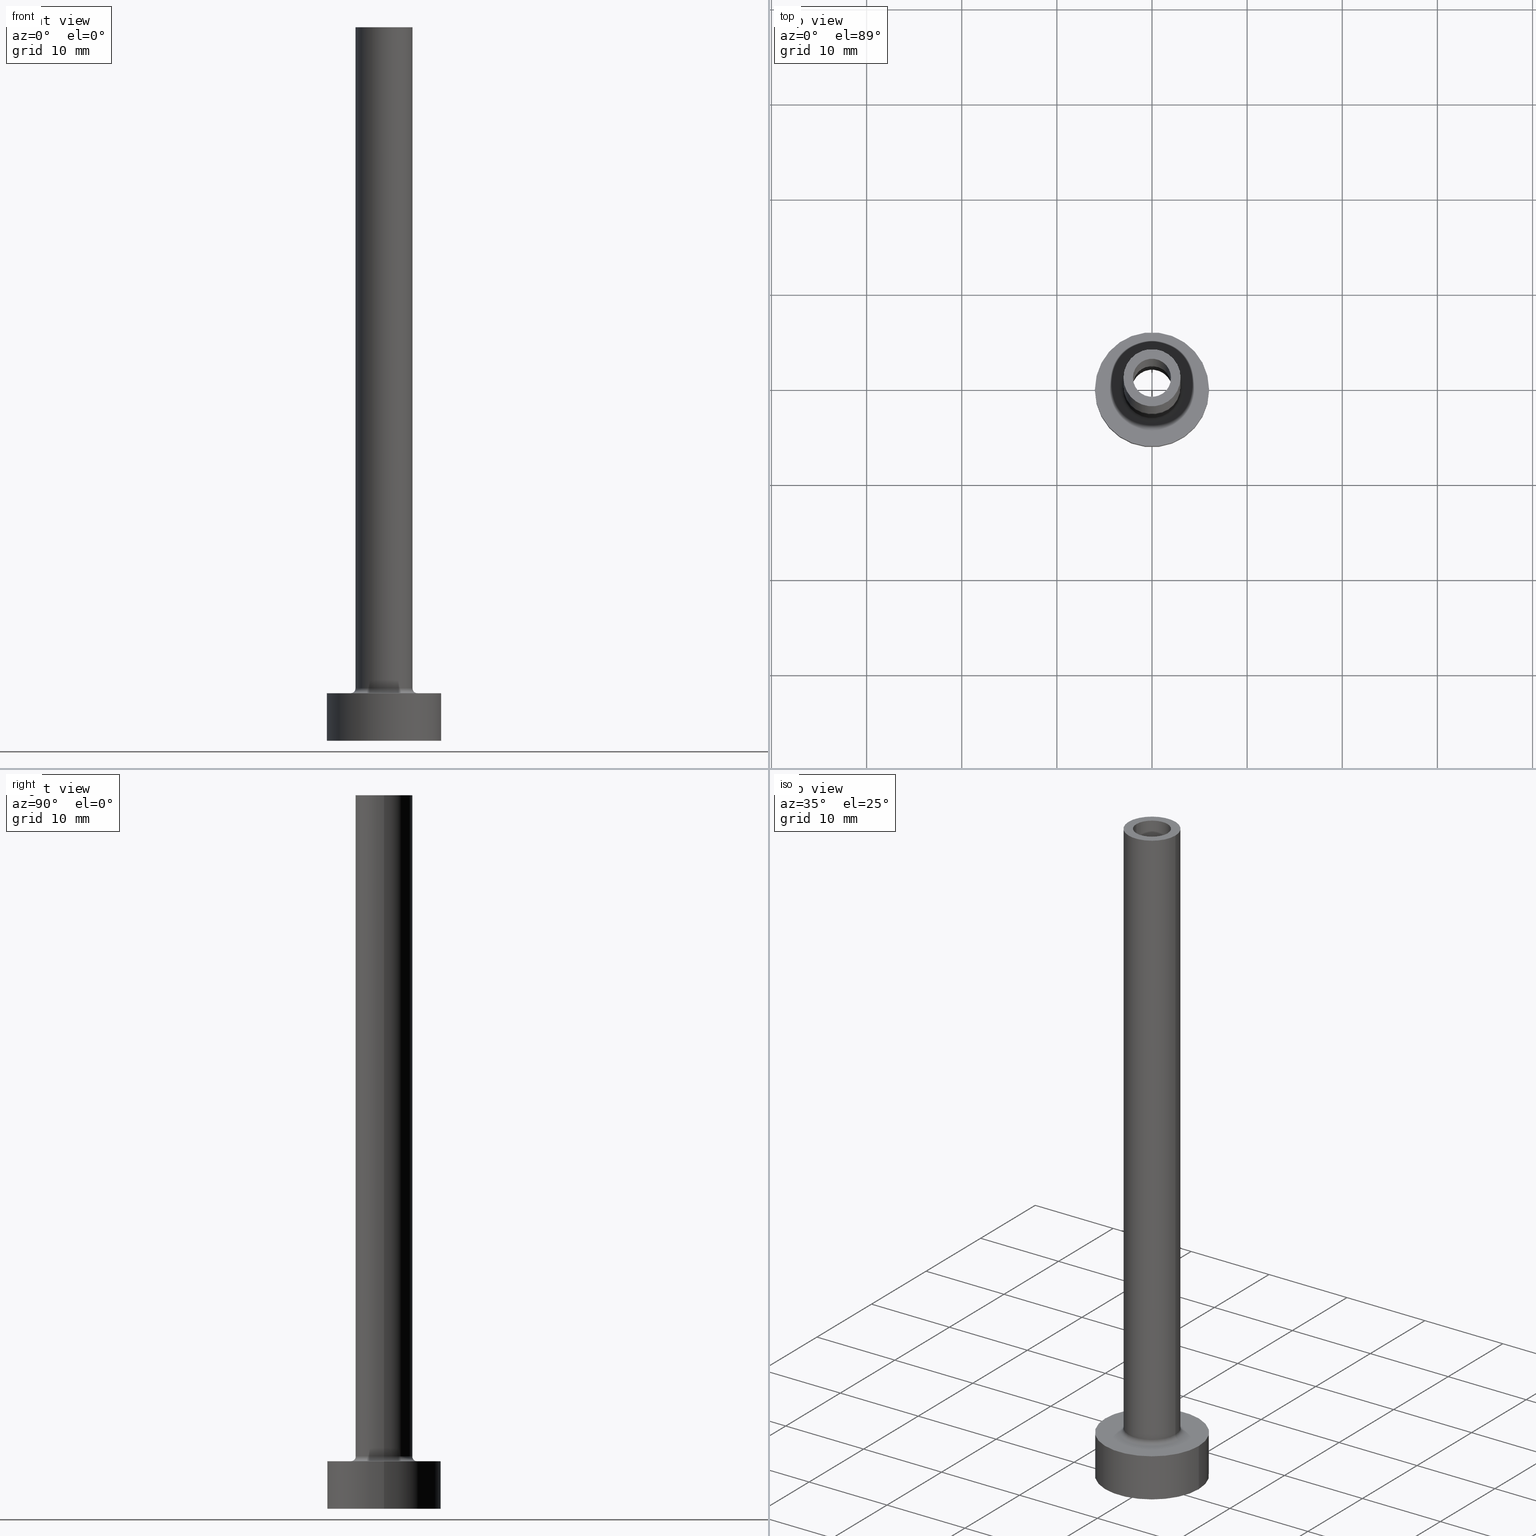
[diagram: canonical four-view strip — front | top / right | iso, engineering-drawing reading convention]
A machine part, canonical four-view strip (front | top / right | iso — engineering-drawing reading convention). The complete STEP part file that produces these views, byte-faithful:
ISO-10303-21;
HEADER;
FILE_DESCRIPTION (( 'STEP AP203' ),
    '1' );
FILE_NAME ('e62a.STEP',
    '2023-02-13T12:00:07',
    ( '' ),
    ( '' ),
    'SwSTEP 2.0',
    'SolidWorks 2019',
    '' );
FILE_SCHEMA (( 'CONFIG_CONTROL_DESIGN' ));
ENDSEC;

DATA;
#1 = LINE ( 'NONE', #241, #173 ) ;
#2 = DIRECTION ( 'NONE',  ( -1.000000000000000000, 0.000000000000000000, 0.000000000000000000 ) ) ;
#3 = DIRECTION ( 'NONE',  ( -0.000000000000000000, -0.000000000000000000, -1.000000000000000000 ) ) ;
#4 = ORIENTED_EDGE ( 'NONE', *, *, #391, .T. ) ;
#5 = CARTESIAN_POINT ( 'NONE',  ( 0.000000000000000000, 0.000000000000000000, 36.08111831820431803 ) ) ;
#6 = ADVANCED_FACE ( 'NONE', ( #313 ), #427, .T. ) ;
#7 = AXIS2_PLACEMENT_3D ( 'NONE', #305, #148, #351 ) ;
#8 = LOCAL_TIME ( 13, 0, 7.000000000000000000, #185 ) ;
#9 = DIRECTION ( 'NONE',  ( 0.000000000000000000, 0.000000000000000000, 1.000000000000000000 ) ) ;
#10 = PERSON_AND_ORGANIZATION_ROLE ( 'creator' ) ;
#11 = VERTEX_POINT ( 'NONE', #143 ) ;
#12 = TOROIDAL_SURFACE ( 'NONE', #347, 3.500000000000000444, 0.5000000000000000000 ) ;
#13 =( LENGTH_UNIT ( ) NAMED_UNIT ( * ) SI_UNIT ( .MILLI., .METRE. ) );
#14 = CC_DESIGN_APPROVAL ( #460, ( #18 ) ) ;
#15 = VERTEX_POINT ( 'NONE', #242 ) ;
#16 = EDGE_CURVE ( 'NONE', #381, #62, #399, .T. ) ;
#17 = ORIENTED_EDGE ( 'NONE', *, *, #277, .F. ) ;
#18 = PRODUCT_DEFINITION ( 'NEZN�M�', '', #114, #163 ) ;
#19 = AXIS2_PLACEMENT_3D ( 'NONE', #372, #262, #160 ) ;
#20 = VECTOR ( 'NONE', #136, 1000.000000000000000 ) ;
#21 = FACE_BOUND ( 'NONE', #41, .T. ) ;
#22 = CARTESIAN_POINT ( 'NONE',  ( -6.000000000000000888, 0.000000000000000000, 5.000000000000000000 ) ) ;
#23 = CARTESIAN_POINT ( 'NONE',  ( 0.000000000000000000, 0.000000000000000000, 30.00000000000001421 ) ) ;
#24 = APPROVAL_DATE_TIME ( #341, #460 ) ;
#25 = DIRECTION ( 'NONE',  ( 0.000000000000000000, 0.000000000000000000, -1.000000000000000000 ) ) ;
#26 = DIRECTION ( 'NONE',  ( 0.000000000000000000, 0.000000000000000000, 1.000000000000000000 ) ) ;
#27 = CIRCLE ( 'NONE', #456, 3.000000000000000444 ) ;
#28 = DIRECTION ( 'NONE',  ( 0.000000000000000000, 0.000000000000000000, 1.000000000000000000 ) ) ;
#29 = CARTESIAN_POINT ( 'NONE',  ( -2.000000000000000000, 0.000000000000000000, 75.00000000000001421 ) ) ;
#30 = CYLINDRICAL_SURFACE ( 'NONE', #63, 3.000000000000000444 ) ;
#31 = PERSON_AND_ORGANIZATION ( #418, #230 ) ;
#32 = EDGE_LOOP ( 'NONE', ( #350, #237, #420, #55 ) ) ;
#33 = CARTESIAN_POINT ( 'NONE',  ( 2.149999999999999911, 2.632990618166808742E-16, 36.08111831820431803 ) ) ;
#34 = ADVANCED_FACE ( 'NONE', ( #422 ), #317, .F. ) ;
#35 = DIRECTION ( 'NONE',  ( 0.000000000000000000, 0.000000000000000000, 1.000000000000000000 ) ) ;
#36 = DIRECTION ( 'NONE',  ( 1.000000000000000000, 0.000000000000000000, 0.000000000000000000 ) ) ;
#37 = AXIS2_PLACEMENT_3D ( 'NONE', #308, #243, #384 ) ;
#38 = ORIENTED_EDGE ( 'NONE', *, *, #217, .T. ) ;
#39 = ORIENTED_EDGE ( 'NONE', *, *, #252, .F. ) ;
#40 = DIRECTION ( 'NONE',  ( -1.000000000000000000, 0.000000000000000000, 0.000000000000000000 ) ) ;
#41 = EDGE_LOOP ( 'NONE', ( #145, #432 ) ) ;
#42 = ORIENTED_EDGE ( 'NONE', *, *, #96, .F. ) ;
#43 = DIRECTION ( 'NONE',  ( -0.000000000000000000, -0.000000000000000000, -1.000000000000000000 ) ) ;
#44 = APPROVAL_ROLE ( '' ) ;
#45 = CC_DESIGN_PERSON_AND_ORGANIZATION_ASSIGNMENT ( #31, #100, ( #18 ) ) ;
#46 = ORIENTED_EDGE ( 'NONE', *, *, #60, .T. ) ;
#47 = CARTESIAN_POINT ( 'NONE',  ( 0.000000000000000000, 0.000000000000000000, 30.00000000000001421 ) ) ;
#48 = PERSON_AND_ORGANIZATION ( #418, #230 ) ;
#49 = AXIS2_PLACEMENT_3D ( 'NONE', #47, #182, #85 ) ;
#50 = UNCERTAINTY_MEASURE_WITH_UNIT (LENGTH_MEASURE( 1.000000000000000082E-05 ), #13, 'distance_accuracy_value', 'NONE');
#51 = DIRECTION ( 'NONE',  ( 1.000000000000000000, 0.000000000000000000, 0.000000000000000000 ) ) ;
#52 = ORIENTED_EDGE ( 'NONE', *, *, #443, .F. ) ;
#53 = AXIS2_PLACEMENT_3D ( 'NONE', #140, #65, #205 ) ;
#54 = CC_DESIGN_SECURITY_CLASSIFICATION ( #438, ( #114 ) ) ;
#55 = ORIENTED_EDGE ( 'NONE', *, *, #96, .T. ) ;
#56 = ADVANCED_FACE ( 'NONE', ( #247 ), #338, .F. ) ;
#57 = CIRCLE ( 'NONE', #441, 6.000000000000000888 ) ;
#58 = VERTEX_POINT ( 'NONE', #29 ) ;
#59 =( GEOMETRIC_REPRESENTATION_CONTEXT ( 3 ) GLOBAL_UNCERTAINTY_ASSIGNED_CONTEXT ( ( #50 ) ) GLOBAL_UNIT_ASSIGNED_CONTEXT ( ( #13, #153, #394 ) ) REPRESENTATION_CONTEXT ( 'NONE', 'WORKASPACE' ) );
#60 = EDGE_CURVE ( 'NONE', #381, #257, #274, .T. ) ;
#61 = CARTESIAN_POINT ( 'NONE',  ( 0.000000000000000000, 0.000000000000000000, 5.500000000000005329 ) ) ;
#62 = VERTEX_POINT ( 'NONE', #64 ) ;
#63 = AXIS2_PLACEMENT_3D ( 'NONE', #169, #43, #281 ) ;
#64 = CARTESIAN_POINT ( 'NONE',  ( -3.000000000000000444, 0.000000000000000000, 5.500000000000005329 ) ) ;
#65 = DIRECTION ( 'NONE',  ( 0.000000000000000000, 0.000000000000000000, -1.000000000000000000 ) ) ;
#66 = ADVANCED_FACE ( 'NONE', ( #204, #109 ), #251, .T. ) ;
#67 = CARTESIAN_POINT ( 'NONE',  ( -6.000000000000000888, 0.000000000000000000, 0.000000000000000000 ) ) ;
#68 = CALENDAR_DATE ( 2023, 13, 2 ) ;
#69 = DIRECTION ( 'NONE',  ( 0.000000000000000000, 0.000000000000000000, -1.000000000000000000 ) ) ;
#70 = CIRCLE ( 'NONE', #127, 2.149999999999999911 ) ;
#71 = CALENDAR_DATE ( 2023, 13, 2 ) ;
#72 = VERTEX_POINT ( 'NONE', #76 ) ;
#73 = EDGE_CURVE ( 'NONE', #11, #335, #378, .T. ) ;
#74 = CARTESIAN_POINT ( 'NONE',  ( 0.000000000000000000, 0.000000000000000000, 75.00000000000001421 ) ) ;
#75 = ORIENTED_EDGE ( 'NONE', *, *, #352, .T. ) ;
#76 = CARTESIAN_POINT ( 'NONE',  ( -2.149999999999999911, 0.000000000000000000, 0.000000000000000000 ) ) ;
#77 = CARTESIAN_POINT ( 'NONE',  ( 0.000000000000000000, 0.000000000000000000, 75.00000000000001421 ) ) ;
#78 = PERSON_AND_ORGANIZATION ( #418, #230 ) ;
#79 = CIRCLE ( 'NONE', #229, 6.000000000000000888 ) ;
#80 = APPROVAL_PERSON_ORGANIZATION ( #458, #184, #111 ) ;
#81 = ADVANCED_FACE ( 'NONE', ( #366 ), #329, .T. ) ;
#82 = ORIENTED_EDGE ( 'NONE', *, *, #158, .F. ) ;
#83 = DATE_AND_TIME ( #117, #358 ) ;
#84 = ADVANCED_FACE ( 'NONE', ( #21, #192 ), #331, .F. ) ;
#85 = DIRECTION ( 'NONE',  ( 1.000000000000000000, 0.000000000000000000, 0.000000000000000000 ) ) ;
#86 = CARTESIAN_POINT ( 'NONE',  ( 0.000000000000000000, 0.000000000000000000, 30.00000000000001421 ) ) ;
#87 = AXIS2_PLACEMENT_3D ( 'NONE', #138, #279, #385 ) ;
#88 = ORIENTED_EDGE ( 'NONE', *, *, #267, .F. ) ;
#89 = DIRECTION ( 'NONE',  ( -0.000000000000000000, -0.000000000000000000, -1.000000000000000000 ) ) ;
#90 = EDGE_CURVE ( 'NONE', #294, #58, #275, .T. ) ;
#91 = PERSON_AND_ORGANIZATION ( #418, #230 ) ;
#92 = DIRECTION ( 'NONE',  ( 0.000000000000000000, 0.000000000000000000, 1.000000000000000000 ) ) ;
#93 = ORIENTED_EDGE ( 'NONE', *, *, #405, .T. ) ;
#94 = ADVANCED_BREP_SHAPE_REPRESENTATION ( 'e62a', ( #414, #365 ), #59 ) ;
#95 = CYLINDRICAL_SURFACE ( 'NONE', #87, 6.000000000000000888 ) ;
#96 = EDGE_CURVE ( 'NONE', #62, #381, #239, .T. ) ;
#97 = DIRECTION ( 'NONE',  ( 1.000000000000000000, 0.000000000000000000, 0.000000000000000000 ) ) ;
#98 = AXIS2_PLACEMENT_3D ( 'NONE', #417, #128, #415 ) ;
#99 = LOCAL_TIME ( 13, 0, 7.000000000000000000, #389 ) ;
#100 = PERSON_AND_ORGANIZATION_ROLE ( 'creator' ) ;
#101 = DIRECTION ( 'NONE',  ( 1.000000000000000000, 0.000000000000000000, 0.000000000000000000 ) ) ;
#102 = DIRECTION ( 'NONE',  ( 1.000000000000000000, 0.000000000000000000, 0.000000000000000000 ) ) ;
#103 = CARTESIAN_POINT ( 'NONE',  ( 6.000000000000000888, 7.347880794884120722E-16, 5.000000000000000000 ) ) ;
#104 = DIRECTION ( 'NONE',  ( -1.000000000000000000, 0.000000000000000000, 0.000000000000000000 ) ) ;
#105 = CARTESIAN_POINT ( 'NONE',  ( 6.000000000000000888, 7.347880794884120722E-16, 0.000000000000000000 ) ) ;
#106 = AXIS2_PLACEMENT_3D ( 'NONE', #131, #269, #240 ) ;
#107 = ORIENTED_EDGE ( 'NONE', *, *, #398, .T. ) ;
#108 = DIRECTION ( 'NONE',  ( 0.000000000000000000, 0.000000000000000000, 1.000000000000000000 ) ) ;
#109 = FACE_OUTER_BOUND ( 'NONE', #348, .T. ) ;
#110 = CALENDAR_DATE ( 2023, 13, 2 ) ;
#111 = APPROVAL_ROLE ( '' ) ;
#112 = CC_DESIGN_PERSON_AND_ORGANIZATION_ASSIGNMENT ( #359, #253, ( #114 ) ) ;
#113 = AXIS2_PLACEMENT_3D ( 'NONE', #23, #92, #370 ) ;
#114 = PRODUCT_DEFINITION_FORMATION_WITH_SPECIFIED_SOURCE ( 'LIBOVOLN�', '', #261, .NOT_KNOWN. ) ;
#115 = ORIENTED_EDGE ( 'NONE', *, *, #398, .F. ) ;
#116 = APPLICATION_CONTEXT ( 'configuration controlled 3d designs of mechanical parts and assemblies' ) ;
#117 = CALENDAR_DATE ( 2023, 13, 2 ) ;
#118 = VERTEX_POINT ( 'NONE', #303 ) ;
#119 = EDGE_CURVE ( 'NONE', #118, #15, #337, .T. ) ;
#120 = VERTEX_POINT ( 'NONE', #22 ) ;
#121 = AXIS2_PLACEMENT_3D ( 'NONE', #170, #431, #40 ) ;
#122 = VERTEX_POINT ( 'NONE', #197 ) ;
#123 = ORIENTED_EDGE ( 'NONE', *, *, #267, .T. ) ;
#124 = DIRECTION ( 'NONE',  ( 0.000000000000000000, 0.000000000000000000, 1.000000000000000000 ) ) ;
#125 = EDGE_LOOP ( 'NONE', ( #75, #139 ) ) ;
#126 = CARTESIAN_POINT ( 'NONE',  ( 0.000000000000000000, 0.000000000000000000, 0.000000000000000000 ) ) ;
#127 = AXIS2_PLACEMENT_3D ( 'NONE', #223, #403, #440 ) ;
#128 = DIRECTION ( 'NONE',  ( 0.000000000000000000, 0.000000000000000000, 1.000000000000000000 ) ) ;
#129 = CARTESIAN_POINT ( 'NONE',  ( -6.000000000000000888, 0.000000000000000000, 5.000000000000000000 ) ) ;
#130 = CC_DESIGN_DATE_AND_TIME_ASSIGNMENT ( #219, #321, ( #438 ) ) ;
#131 = CARTESIAN_POINT ( 'NONE',  ( 3.500000000000000444, 0.000000000000000000, 5.500000000000005329 ) ) ;
#132 = CARTESIAN_POINT ( 'NONE',  ( 6.000000000000000888, 7.347880794884120722E-16, 5.000000000000000000 ) ) ;
#133 = EDGE_LOOP ( 'NONE', ( #369, #82 ) ) ;
#134 = ORIENTED_EDGE ( 'NONE', *, *, #327, .T. ) ;
#135 = AXIS2_PLACEMENT_3D ( 'NONE', #421, #202, #102 ) ;
#136 = DIRECTION ( 'NONE',  ( 0.000000000000000000, 0.000000000000000000, -1.000000000000000000 ) ) ;
#137 = CC_DESIGN_APPROVAL ( #184, ( #114 ) ) ;
#138 = CARTESIAN_POINT ( 'NONE',  ( 0.000000000000000000, 0.000000000000000000, 5.000000000000000000 ) ) ;
#139 = ORIENTED_EDGE ( 'NONE', *, *, #439, .T. ) ;
#140 = CARTESIAN_POINT ( 'NONE',  ( 0.000000000000000000, 0.000000000000000000, 36.08111831820431803 ) ) ;
#141 = EDGE_LOOP ( 'NONE', ( #345, #134, #282, #88 ) ) ;
#142 = CARTESIAN_POINT ( 'NONE',  ( 0.000000000000000000, 0.000000000000000000, 0.000000000000000000 ) ) ;
#143 = CARTESIAN_POINT ( 'NONE',  ( 2.000000000000000000, 2.449293598294705921E-16, 30.00000000000001421 ) ) ;
#144 = FACE_OUTER_BOUND ( 'NONE', #175, .T. ) ;
#145 = ORIENTED_EDGE ( 'NONE', *, *, #146, .T. ) ;
#146 = EDGE_CURVE ( 'NONE', #335, #11, #416, .T. ) ;
#147 = APPROVAL_DATE_TIME ( #356, #184 ) ;
#148 = DIRECTION ( 'NONE',  ( 0.000000000000000000, 0.000000000000000000, -1.000000000000000000 ) ) ;
#149 = CARTESIAN_POINT ( 'NONE',  ( -3.000000000000000444, 0.000000000000000000, 75.00000000000001421 ) ) ;
#150 = VECTOR ( 'NONE', #248, 1000.000000000000000 ) ;
#151 = CARTESIAN_POINT ( 'NONE',  ( 0.000000000000000000, 0.000000000000000000, 5.500000000000005329 ) ) ;
#152 = ADVANCED_FACE ( 'NONE', ( #300, #449 ), #411, .F. ) ;
#153 =( NAMED_UNIT ( * ) PLANE_ANGLE_UNIT ( ) SI_UNIT ( $, .RADIAN. ) );
#154 = ORIENTED_EDGE ( 'NONE', *, *, #119, .T. ) ;
#155 = AXIS2_PLACEMENT_3D ( 'NONE', #299, #296, #228 ) ;
#156 = PLANE ( 'NONE',  #298 ) ;
#157 = PERSON_AND_ORGANIZATION ( #418, #230 ) ;
#158 = EDGE_CURVE ( 'NONE', #231, #72, #357, .T. ) ;
#159 = EDGE_LOOP ( 'NONE', ( #42, #214, #115, #323 ) ) ;
#160 = DIRECTION ( 'NONE',  ( 1.000000000000000000, 0.000000000000000000, 0.000000000000000000 ) ) ;
#161 = CIRCLE ( 'NONE', #220, 2.000000000000000000 ) ;
#162 = DIRECTION ( 'NONE',  ( 1.000000000000000000, 0.000000000000000000, -0.000000000000000000 ) ) ;
#163 = DESIGN_CONTEXT ( 'detailed design', #189, 'design' ) ;
#164 = VECTOR ( 'NONE', #3, 1000.000000000000000 ) ;
#165 = ORIENTED_EDGE ( 'NONE', *, *, #327, .F. ) ;
#166 = APPROVAL_PERSON_ORGANIZATION ( #343, #460, #346 ) ;
#167 = CC_DESIGN_PERSON_AND_ORGANIZATION_ASSIGNMENT ( #78, #397, ( #438 ) ) ;
#168 = DIRECTION ( 'NONE',  ( 0.000000000000000000, 0.000000000000000000, -1.000000000000000000 ) ) ;
#169 = CARTESIAN_POINT ( 'NONE',  ( 0.000000000000000000, 0.000000000000000000, 75.00000000000001421 ) ) ;
#170 = CARTESIAN_POINT ( 'NONE',  ( 0.000000000000000000, 0.000000000000000000, 75.00000000000001421 ) ) ;
#171 = DATE_TIME_ROLE ( 'creation_date' ) ;
#172 = DIRECTION ( 'NONE',  ( 1.000000000000000000, 0.000000000000000000, 0.000000000000000000 ) ) ;
#173 = VECTOR ( 'NONE', #25, 1000.000000000000000 ) ;
#174 = DIRECTION ( 'NONE',  ( 1.000000000000000000, 0.000000000000000000, 0.000000000000000000 ) ) ;
#175 = EDGE_LOOP ( 'NONE', ( #176, #430, #46, #196 ) ) ;
#176 = ORIENTED_EDGE ( 'NONE', *, *, #340, .F. ) ;
#177 = CYLINDRICAL_SURFACE ( 'NONE', #53, 2.149999999999999911 ) ;
#178 = CARTESIAN_POINT ( 'NONE',  ( 0.000000000000000000, 0.000000000000000000, 75.00000000000001421 ) ) ;
#179 = EDGE_LOOP ( 'NONE', ( #406, #93, #386, #17 ) ) ;
#180 = DIRECTION ( 'NONE',  ( 0.000000000000000000, 0.000000000000000000, 1.000000000000000000 ) ) ;
#181 = APPROVAL_DATE_TIME ( #83, #194 ) ;
#182 = DIRECTION ( 'NONE',  ( 0.000000000000000000, 0.000000000000000000, 1.000000000000000000 ) ) ;
#183 = AXIS2_PLACEMENT_3D ( 'NONE', #201, #206, #2 ) ;
#184 = APPROVAL ( #209, 'NEUR�EN�' ) ;
#185 = COORDINATED_UNIVERSAL_TIME_OFFSET ( 1, 0, .AHEAD. ) ;
#186 = EDGE_LOOP ( 'NONE', ( #165, #154, #123, #4 ) ) ;
#187 = CARTESIAN_POINT ( 'NONE',  ( 0.000000000000000000, 0.000000000000000000, 5.000000000000000000 ) ) ;
#188 = SECURITY_CLASSIFICATION_LEVEL ( 'unclassified' ) ;
#189 = APPLICATION_CONTEXT ( 'configuration controlled 3d designs of mechanical parts and assemblies' ) ;
#190 = AXIS2_PLACEMENT_3D ( 'NONE', #86, #227, #36 ) ;
#191 = ORIENTED_EDGE ( 'NONE', *, *, #277, .T. ) ;
#192 = FACE_OUTER_BOUND ( 'NONE', #271, .T. ) ;
#193 = VECTOR ( 'NONE', #278, 1000.000000000000000 ) ;
#194 = APPROVAL ( #216, 'NEUR�EN�' ) ;
#195 = DIRECTION ( 'NONE',  ( 0.000000000000000000, 0.000000000000000000, 1.000000000000000000 ) ) ;
#196 = ORIENTED_EDGE ( 'NONE', *, *, #447, .F. ) ;
#197 = CARTESIAN_POINT ( 'NONE',  ( -3.500000000000000444, 4.286263797015737088E-16, 5.000000000000002665 ) ) ;
#198 = EDGE_CURVE ( 'NONE', #58, #294, #161, .T. ) ;
#199 = DIRECTION ( 'NONE',  ( 1.000000000000000000, 0.000000000000000000, 0.000000000000000000 ) ) ;
#200 = AXIS2_PLACEMENT_3D ( 'NONE', #126, #89, #199 ) ;
#201 = CARTESIAN_POINT ( 'NONE',  ( 0.000000000000000000, 0.000000000000000000, 5.000000000000000000 ) ) ;
#202 = DIRECTION ( 'NONE',  ( 0.000000000000000000, 0.000000000000000000, 1.000000000000000000 ) ) ;
#203 = MECHANICAL_CONTEXT ( 'NONE', #116, 'mechanical' ) ;
#204 = FACE_BOUND ( 'NONE', #212, .T. ) ;
#205 = DIRECTION ( 'NONE',  ( -1.000000000000000000, 0.000000000000000000, 0.000000000000000000 ) ) ;
#206 = DIRECTION ( 'NONE',  ( -0.000000000000000000, -0.000000000000000000, -1.000000000000000000 ) ) ;
#207 = DIRECTION ( 'NONE',  ( 1.000000000000000000, 0.000000000000000000, 0.000000000000000000 ) ) ;
#208 = ORIENTED_EDGE ( 'NONE', *, *, #222, .F. ) ;
#209 = APPROVAL_STATUS ( 'not_yet_approved' ) ;
#210 = CIRCLE ( 'NONE', #302, 6.000000000000000888 ) ;
#211 = DIRECTION ( 'NONE',  ( 0.000000000000000000, 0.000000000000000000, 1.000000000000000000 ) ) ;
#212 = EDGE_LOOP ( 'NONE', ( #107, #453 ) ) ;
#213 = DIRECTION ( 'NONE',  ( 0.000000000000000000, 0.000000000000000000, 1.000000000000000000 ) ) ;
#214 = ORIENTED_EDGE ( 'NONE', *, *, #340, .T. ) ;
#215 = LINE ( 'NONE', #246, #150 ) ;
#216 = APPROVAL_STATUS ( 'not_yet_approved' ) ;
#217 = EDGE_CURVE ( 'NONE', #333, #381, #409, .T. ) ;
#218 = DIRECTION ( 'NONE',  ( 1.000000000000000000, 0.000000000000000000, 0.000000000000000000 ) ) ;
#219 = DATE_AND_TIME ( #110, #8 ) ;
#220 = AXIS2_PLACEMENT_3D ( 'NONE', #264, #26, #259 ) ;
#221 = EDGE_LOOP ( 'NONE', ( #312, #38, #413, #39 ) ) ;
#222 = EDGE_CURVE ( 'NONE', #15, #118, #320, .T. ) ;
#223 = CARTESIAN_POINT ( 'NONE',  ( 0.000000000000000000, 0.000000000000000000, 0.000000000000000000 ) ) ;
#224 = AXIS2_PLACEMENT_3D ( 'NONE', #232, #124, #162 ) ;
#225 = APPROVAL_PERSON_ORGANIZATION ( #157, #194, #44 ) ;
#226 = EDGE_LOOP ( 'NONE', ( #434, #383 ) ) ;
#227 = DIRECTION ( 'NONE',  ( 0.000000000000000000, 0.000000000000000000, 1.000000000000000000 ) ) ;
#228 = DIRECTION ( 'NONE',  ( 1.000000000000000000, 0.000000000000000000, -0.000000000000000000 ) ) ;
#229 = AXIS2_PLACEMENT_3D ( 'NONE', #461, #380, #207 ) ;
#230 = ORGANIZATION ( 'NEUR�EN�', 'NEUR�EN�', '' ) ;
#231 = VERTEX_POINT ( 'NONE', #435 ) ;
#232 = CARTESIAN_POINT ( 'NONE',  ( 0.000000000000000000, 0.000000000000000000, 30.00000000000001421 ) ) ;
#233 = EDGE_CURVE ( 'NONE', #316, #120, #79, .T. ) ;
#234 = EDGE_LOOP ( 'NONE', ( #283, #280 ) ) ;
#235 = DIRECTION ( 'NONE',  ( -1.000000000000000000, 0.000000000000000000, 0.000000000000000000 ) ) ;
#236 = DIRECTION ( 'NONE',  ( 1.000000000000000000, 0.000000000000000000, 0.000000000000000000 ) ) ;
#237 = ORIENTED_EDGE ( 'NONE', *, *, #352, .F. ) ;
#238 = CARTESIAN_POINT ( 'NONE',  ( -2.000000000000000000, 0.000000000000000000, 75.00000000000001421 ) ) ;
#239 = CIRCLE ( 'NONE', #297, 3.000000000000000444 ) ;
#240 = DIRECTION ( 'NONE',  ( 0.000000000000000000, 0.000000000000000000, -1.000000000000000000 ) ) ;
#241 = CARTESIAN_POINT ( 'NONE',  ( 2.000000000000000000, 2.449293598294705921E-16, 75.00000000000001421 ) ) ;
#242 = CARTESIAN_POINT ( 'NONE',  ( -2.149999999999999911, 0.000000000000000000, 30.00000000000001421 ) ) ;
#243 = DIRECTION ( 'NONE',  ( 1.224646799147353207E-16, 1.000000000000000000, -0.000000000000000000 ) ) ;
#244 = CC_DESIGN_PERSON_AND_ORGANIZATION_ASSIGNMENT ( #48, #10, ( #114 ) ) ;
#245 = PERSON_AND_ORGANIZATION_ROLE ( 'design_owner' ) ;
#246 = CARTESIAN_POINT ( 'NONE',  ( -3.000000000000000444, 0.000000000000000000, 75.00000000000001421 ) ) ;
#247 = FACE_OUTER_BOUND ( 'NONE', #179, .T. ) ;
#248 = DIRECTION ( 'NONE',  ( -0.000000000000000000, -0.000000000000000000, -1.000000000000000000 ) ) ;
#249 = VERTEX_POINT ( 'NONE', #105 ) ;
#250 = DIRECTION ( 'NONE',  ( -0.000000000000000000, -0.000000000000000000, -1.000000000000000000 ) ) ;
#251 = PLANE ( 'NONE',  #445 ) ;
#252 = EDGE_CURVE ( 'NONE', #392, #62, #215, .T. ) ;
#253 = PERSON_AND_ORGANIZATION_ROLE ( 'design_supplier' ) ;
#254 = AXIS2_PLACEMENT_3D ( 'NONE', #374, #35, #172 ) ;
#255 = CIRCLE ( 'NONE', #287, 3.500000000000000444 ) ;
#256 = CARTESIAN_POINT ( 'NONE',  ( 3.000000000000000444, 3.673940397442060361E-16, 5.500000000000005329 ) ) ;
#257 = VERTEX_POINT ( 'NONE', #353 ) ;
#258 = ORIENTED_EDGE ( 'NONE', *, *, #362, .F. ) ;
#259 = DIRECTION ( 'NONE',  ( 1.000000000000000000, 0.000000000000000000, 0.000000000000000000 ) ) ;
#260 = ADVANCED_FACE ( 'NONE', ( #423 ), #177, .F. ) ;
#261 = PRODUCT ( 'e62a', 'e62a', '', ( #203 ) ) ;
#262 = DIRECTION ( 'NONE',  ( 0.000000000000000000, 0.000000000000000000, 1.000000000000000000 ) ) ;
#263 = ORIENTED_EDGE ( 'NONE', *, *, #90, .T. ) ;
#264 = CARTESIAN_POINT ( 'NONE',  ( 0.000000000000000000, 0.000000000000000000, 75.00000000000001421 ) ) ;
#265 = VECTOR ( 'NONE', #349, 1000.000000000000000 ) ;
#266 = APPLICATION_PROTOCOL_DEFINITION ( 'international standard', 'config_control_design', 1994, #116 ) ;
#267 = EDGE_CURVE ( 'NONE', #15, #72, #454, .T. ) ;
#268 = CARTESIAN_POINT ( 'NONE',  ( -2.149999999999999911, 0.000000000000000000, 36.08111831820431803 ) ) ;
#269 = DIRECTION ( 'NONE',  ( 0.000000000000000000, -1.000000000000000000, 0.000000000000000000 ) ) ;
#270 = CARTESIAN_POINT ( 'NONE',  ( 0.000000000000000000, 0.000000000000000000, 5.500000000000005329 ) ) ;
#271 = EDGE_LOOP ( 'NONE', ( #208, #444 ) ) ;
#272 = APPROVAL_STATUS ( 'not_yet_approved' ) ;
#273 = PRODUCT_DEFINITION_SHAPE ( 'NONE', 'NONE',  #18 ) ;
#274 = CIRCLE ( 'NONE', #106, 0.5000000000000004441 ) ;
#275 = CIRCLE ( 'NONE', #19, 2.000000000000000000 ) ;
#276 = ORIENTED_EDGE ( 'NONE', *, *, #362, .T. ) ;
#277 = EDGE_CURVE ( 'NONE', #58, #335, #342, .T. ) ;
#278 = DIRECTION ( 'NONE',  ( -0.000000000000000000, -0.000000000000000000, -1.000000000000000000 ) ) ;
#279 = DIRECTION ( 'NONE',  ( -0.000000000000000000, -0.000000000000000000, -1.000000000000000000 ) ) ;
#280 = ORIENTED_EDGE ( 'NONE', *, *, #90, .F. ) ;
#281 = DIRECTION ( 'NONE',  ( -1.000000000000000000, 0.000000000000000000, 0.000000000000000000 ) ) ;
#282 = ORIENTED_EDGE ( 'NONE', *, *, #158, .T. ) ;
#283 = ORIENTED_EDGE ( 'NONE', *, *, #198, .F. ) ;
#284 = LINE ( 'NONE', #103, #164 ) ;
#285 = ORIENTED_EDGE ( 'NONE', *, *, #443, .T. ) ;
#286 = EDGE_CURVE ( 'NONE', #120, #307, #318, .T. ) ;
#287 = AXIS2_PLACEMENT_3D ( 'NONE', #396, #304, #101 ) ;
#288 = DIRECTION ( 'NONE',  ( 0.000000000000000000, 0.000000000000000000, 1.000000000000000000 ) ) ;
#289 = FACE_OUTER_BOUND ( 'NONE', #125, .T. ) ;
#290 = DIRECTION ( 'NONE',  ( 1.000000000000000000, 0.000000000000000000, 0.000000000000000000 ) ) ;
#291 = ORIENTED_EDGE ( 'NONE', *, *, #233, .F. ) ;
#292 = DIRECTION ( 'NONE',  ( 1.000000000000000000, 0.000000000000000000, 0.000000000000000000 ) ) ;
#293 = COORDINATED_UNIVERSAL_TIME_OFFSET ( 1, 0, .AHEAD. ) ;
#294 = VERTEX_POINT ( 'NONE', #376 ) ;
#295 = EDGE_CURVE ( 'NONE', #307, #249, #425, .T. ) ;
#296 = DIRECTION ( 'NONE',  ( 0.000000000000000000, 0.000000000000000000, 1.000000000000000000 ) ) ;
#297 = AXIS2_PLACEMENT_3D ( 'NONE', #61, #195, #452 ) ;
#298 = AXIS2_PLACEMENT_3D ( 'NONE', #178, #213, #324 ) ;
#299 = CARTESIAN_POINT ( 'NONE',  ( 0.000000000000000000, 0.000000000000000000, 0.000000000000000000 ) ) ;
#300 = FACE_BOUND ( 'NONE', #133, .T. ) ;
#301 = ADVANCED_FACE ( 'NONE', ( #339 ), #30, .T. ) ;
#302 = AXIS2_PLACEMENT_3D ( 'NONE', #360, #108, #51 ) ;
#303 = CARTESIAN_POINT ( 'NONE',  ( 2.149999999999999911, 2.632990618166808742E-16, 30.00000000000001421 ) ) ;
#304 = DIRECTION ( 'NONE',  ( -0.000000000000000000, -0.000000000000000000, -1.000000000000000000 ) ) ;
#305 = CARTESIAN_POINT ( 'NONE',  ( 0.000000000000000000, 0.000000000000000000, 75.00000000000001421 ) ) ;
#306 = PRODUCT_RELATED_PRODUCT_CATEGORY ( 'detail', '', ( #261 ) ) ;
#307 = VERTEX_POINT ( 'NONE', #67 ) ;
#308 = CARTESIAN_POINT ( 'NONE',  ( -3.500000000000000444, 4.286263797015737088E-16, 5.500000000000005329 ) ) ;
#309 = VECTOR ( 'NONE', #410, 1000.000000000000000 ) ;
#310 = DIRECTION ( 'NONE',  ( 1.000000000000000000, 0.000000000000000000, 0.000000000000000000 ) ) ;
#311 = LINE ( 'NONE', #33, #265 ) ;
#312 = ORIENTED_EDGE ( 'NONE', *, *, #439, .F. ) ;
#313 = FACE_OUTER_BOUND ( 'NONE', #326, .T. ) ;
#314 = CARTESIAN_POINT ( 'NONE',  ( -2.000000000000000000, 0.000000000000000000, 30.00000000000001421 ) ) ;
#315 = ADVANCED_FACE ( 'NONE', ( #387 ), #450, .F. ) ;
#316 = VERTEX_POINT ( 'NONE', #132 ) ;
#317 = CYLINDRICAL_SURFACE ( 'NONE', #367, 2.149999999999999911 ) ;
#318 = LINE ( 'NONE', #129, #193 ) ;
#319 = DIRECTION ( 'NONE',  ( 0.000000000000000000, 0.000000000000000000, 1.000000000000000000 ) ) ;
#320 = CIRCLE ( 'NONE', #190, 2.149999999999999911 ) ;
#321 = DATE_TIME_ROLE ( 'classification_date' ) ;
#322 = CC_DESIGN_PERSON_AND_ORGANIZATION_ASSIGNMENT ( #91, #245, ( #261 ) ) ;
#323 = ORIENTED_EDGE ( 'NONE', *, *, #60, .F. ) ;
#324 = DIRECTION ( 'NONE',  ( 1.000000000000000000, 0.000000000000000000, -0.000000000000000000 ) ) ;
#325 = VECTOR ( 'NONE', #69, 1000.000000000000000 ) ;
#326 = EDGE_LOOP ( 'NONE', ( #291, #276, #388, #361 ) ) ;
#327 = EDGE_CURVE ( 'NONE', #118, #231, #311, .T. ) ;
#328 = ORIENTED_EDGE ( 'NONE', *, *, #286, .T. ) ;
#329 = CYLINDRICAL_SURFACE ( 'NONE', #330, 3.000000000000000444 ) ;
#330 = AXIS2_PLACEMENT_3D ( 'NONE', #448, #336, #235 ) ;
#331 = PLANE ( 'NONE',  #224 ) ;
#332 = ADVANCED_FACE ( 'NONE', ( #344 ), #393, .F. ) ;
#333 = VERTEX_POINT ( 'NONE', #428 ) ;
#334 = DIRECTION ( 'NONE',  ( 0.000000000000000000, 0.000000000000000000, 1.000000000000000000 ) ) ;
#335 = VERTEX_POINT ( 'NONE', #314 ) ;
#336 = DIRECTION ( 'NONE',  ( -0.000000000000000000, -0.000000000000000000, -1.000000000000000000 ) ) ;
#337 = CIRCLE ( 'NONE', #98, 2.149999999999999911 ) ;
#338 = CYLINDRICAL_SURFACE ( 'NONE', #7, 2.000000000000000000 ) ;
#339 = FACE_OUTER_BOUND ( 'NONE', #221, .T. ) ;
#340 = EDGE_CURVE ( 'NONE', #62, #122, #400, .T. ) ;
#341 = DATE_AND_TIME ( #68, #408 ) ;
#342 = LINE ( 'NONE', #238, #325 ) ;
#343 = PERSON_AND_ORGANIZATION ( #418, #230 ) ;
#344 = FACE_OUTER_BOUND ( 'NONE', #424, .T. ) ;
#345 = ORIENTED_EDGE ( 'NONE', *, *, #222, .T. ) ;
#346 = APPROVAL_ROLE ( '' ) ;
#347 = AXIS2_PLACEMENT_3D ( 'NONE', #151, #9, #292 ) ;
#348 = EDGE_LOOP ( 'NONE', ( #285, #442 ) ) ;
#349 = DIRECTION ( 'NONE',  ( 0.000000000000000000, 0.000000000000000000, -1.000000000000000000 ) ) ;
#350 = ORIENTED_EDGE ( 'NONE', *, *, #217, .F. ) ;
#351 = DIRECTION ( 'NONE',  ( -1.000000000000000000, 0.000000000000000000, 0.000000000000000000 ) ) ;
#352 = EDGE_CURVE ( 'NONE', #392, #333, #27, .T. ) ;
#353 = CARTESIAN_POINT ( 'NONE',  ( 3.500000000000000444, 0.000000000000000000, 5.000000000000002665 ) ) ;
#354 = DIRECTION ( 'NONE',  ( 1.000000000000000000, 0.000000000000000000, -0.000000000000000000 ) ) ;
#355 = SHAPE_DEFINITION_REPRESENTATION ( #273, #94 ) ;
#356 = DATE_AND_TIME ( #71, #99 ) ;
#357 = CIRCLE ( 'NONE', #200, 2.149999999999999911 ) ;
#358 = LOCAL_TIME ( 13, 0, 7.000000000000000000, #293 ) ;
#359 = PERSON_AND_ORGANIZATION ( #418, #230 ) ;
#360 = CARTESIAN_POINT ( 'NONE',  ( 0.000000000000000000, 0.000000000000000000, 5.000000000000000000 ) ) ;
#361 = ORIENTED_EDGE ( 'NONE', *, *, #286, .F. ) ;
#362 = EDGE_CURVE ( 'NONE', #316, #249, #284, .T. ) ;
#363 = ORIENTED_EDGE ( 'NONE', *, *, #405, .F. ) ;
#364 = CIRCLE ( 'NONE', #437, 3.500000000000000444 ) ;
#365 = AXIS2_PLACEMENT_3D ( 'NONE', #379, #28, #236 ) ;
#366 = FACE_OUTER_BOUND ( 'NONE', #32, .T. ) ;
#367 = AXIS2_PLACEMENT_3D ( 'NONE', #5, #168, #104 ) ;
#368 = CIRCLE ( 'NONE', #390, 3.000000000000000444 ) ;
#369 = ORIENTED_EDGE ( 'NONE', *, *, #391, .F. ) ;
#370 = DIRECTION ( 'NONE',  ( 1.000000000000000000, 0.000000000000000000, 0.000000000000000000 ) ) ;
#371 = APPLICATION_PROTOCOL_DEFINITION ( 'international standard', 'config_control_design', 1994, #189 ) ;
#372 = CARTESIAN_POINT ( 'NONE',  ( 0.000000000000000000, 0.000000000000000000, 75.00000000000001421 ) ) ;
#373 = CALENDAR_DATE ( 2023, 13, 2 ) ;
#374 = CARTESIAN_POINT ( 'NONE',  ( 0.000000000000000000, 0.000000000000000000, 5.500000000000005329 ) ) ;
#375 = ADVANCED_FACE ( 'NONE', ( #144 ), #12, .F. ) ;
#376 = CARTESIAN_POINT ( 'NONE',  ( 2.000000000000000000, 2.449293598294705921E-16, 75.00000000000001421 ) ) ;
#377 = CLOSED_SHELL ( 'NONE', ( #56, #34, #315, #301, #6, #433, #66, #152, #81, #451, #375, #260, #84, #332 ) ) ;
#378 = CIRCLE ( 'NONE', #49, 2.000000000000000000 ) ;
#379 = CARTESIAN_POINT ( 'NONE',  ( 0.000000000000000000, 0.000000000000000000, 0.000000000000000000 ) ) ;
#380 = DIRECTION ( 'NONE',  ( 0.000000000000000000, 0.000000000000000000, 1.000000000000000000 ) ) ;
#381 = VERTEX_POINT ( 'NONE', #256 ) ;
#382 = DATE_AND_TIME ( #373, #457 ) ;
#383 = ORIENTED_EDGE ( 'NONE', *, *, #412, .F. ) ;
#384 = DIRECTION ( 'NONE',  ( -1.000000000000000000, 1.224646799147354440E-16, 0.000000000000000000 ) ) ;
#385 = DIRECTION ( 'NONE',  ( -1.000000000000000000, 0.000000000000000000, 0.000000000000000000 ) ) ;
#386 = ORIENTED_EDGE ( 'NONE', *, *, #146, .F. ) ;
#387 = FACE_OUTER_BOUND ( 'NONE', #159, .T. ) ;
#388 = ORIENTED_EDGE ( 'NONE', *, *, #412, .T. ) ;
#389 = COORDINATED_UNIVERSAL_TIME_OFFSET ( 1, 0, .AHEAD. ) ;
#390 = AXIS2_PLACEMENT_3D ( 'NONE', #77, #288, #290 ) ;
#391 = EDGE_CURVE ( 'NONE', #72, #231, #70, .T. ) ;
#392 = VERTEX_POINT ( 'NONE', #149 ) ;
#393 = CYLINDRICAL_SURFACE ( 'NONE', #121, 2.000000000000000000 ) ;
#394 =( NAMED_UNIT ( * ) SI_UNIT ( $, .STERADIAN. ) SOLID_ANGLE_UNIT ( ) );
#395 = CARTESIAN_POINT ( 'NONE',  ( 0.000000000000000000, 0.000000000000000000, 5.000000000000000000 ) ) ;
#396 = CARTESIAN_POINT ( 'NONE',  ( 0.000000000000000000, 0.000000000000000000, 5.000000000000000000 ) ) ;
#397 = PERSON_AND_ORGANIZATION_ROLE ( 'classification_officer' ) ;
#398 = EDGE_CURVE ( 'NONE', #257, #122, #255, .T. ) ;
#399 = CIRCLE ( 'NONE', #254, 3.000000000000000444 ) ;
#400 = CIRCLE ( 'NONE', #37, 0.4999999999999995559 ) ;
#401 = FACE_BOUND ( 'NONE', #234, .T. ) ;
#402 = CC_DESIGN_APPROVAL ( #194, ( #438 ) ) ;
#403 = DIRECTION ( 'NONE',  ( -0.000000000000000000, -0.000000000000000000, -1.000000000000000000 ) ) ;
#404 = EDGE_LOOP ( 'NONE', ( #258, #52, #328, #436 ) ) ;
#405 = EDGE_CURVE ( 'NONE', #294, #11, #1, .T. ) ;
#406 = ORIENTED_EDGE ( 'NONE', *, *, #198, .T. ) ;
#407 = AXIS2_PLACEMENT_3D ( 'NONE', #270, #211, #97 ) ;
#408 = LOCAL_TIME ( 13, 0, 7.000000000000000000, #426 ) ;
#409 = LINE ( 'NONE', #446, #309 ) ;
#410 = DIRECTION ( 'NONE',  ( -0.000000000000000000, -0.000000000000000000, -1.000000000000000000 ) ) ;
#411 = PLANE ( 'NONE',  #155 ) ;
#412 = EDGE_CURVE ( 'NONE', #249, #307, #57, .T. ) ;
#413 = ORIENTED_EDGE ( 'NONE', *, *, #16, .T. ) ;
#414 = MANIFOLD_SOLID_BREP ( 'Odebrat vysunut�m4', #377 ) ;
#415 = DIRECTION ( 'NONE',  ( 1.000000000000000000, 0.000000000000000000, 0.000000000000000000 ) ) ;
#416 = CIRCLE ( 'NONE', #113, 2.000000000000000000 ) ;
#417 = CARTESIAN_POINT ( 'NONE',  ( 0.000000000000000000, 0.000000000000000000, 30.00000000000001421 ) ) ;
#418 = PERSON ( 'NEUR�EN�', 'NEUR�EN�', 'NEUR�EN�', ('NEUR�EN�'), ('NEUR�EN�'), ('NEUR�EN�') ) ;
#419 = CC_DESIGN_DATE_AND_TIME_ASSIGNMENT ( #382, #171, ( #18 ) ) ;
#420 = ORIENTED_EDGE ( 'NONE', *, *, #252, .T. ) ;
#421 = CARTESIAN_POINT ( 'NONE',  ( 0.000000000000000000, 0.000000000000000000, 0.000000000000000000 ) ) ;
#422 = FACE_OUTER_BOUND ( 'NONE', #141, .T. ) ;
#423 = FACE_OUTER_BOUND ( 'NONE', #186, .T. ) ;
#424 = EDGE_LOOP ( 'NONE', ( #363, #263, #191, #459 ) ) ;
#425 = CIRCLE ( 'NONE', #135, 6.000000000000000888 ) ;
#426 = COORDINATED_UNIVERSAL_TIME_OFFSET ( 1, 0, .AHEAD. ) ;
#427 = CYLINDRICAL_SURFACE ( 'NONE', #183, 6.000000000000000888 ) ;
#428 = CARTESIAN_POINT ( 'NONE',  ( 3.000000000000000444, 3.673940397442060361E-16, 75.00000000000001421 ) ) ;
#429 = FACE_OUTER_BOUND ( 'NONE', #404, .T. ) ;
#430 = ORIENTED_EDGE ( 'NONE', *, *, #16, .F. ) ;
#431 = DIRECTION ( 'NONE',  ( 0.000000000000000000, 0.000000000000000000, -1.000000000000000000 ) ) ;
#432 = ORIENTED_EDGE ( 'NONE', *, *, #73, .T. ) ;
#433 = ADVANCED_FACE ( 'NONE', ( #429 ), #95, .T. ) ;
#434 = ORIENTED_EDGE ( 'NONE', *, *, #295, .F. ) ;
#435 = CARTESIAN_POINT ( 'NONE',  ( 2.149999999999999911, 2.632990618166808742E-16, 0.000000000000000000 ) ) ;
#436 = ORIENTED_EDGE ( 'NONE', *, *, #295, .T. ) ;
#437 = AXIS2_PLACEMENT_3D ( 'NONE', #187, #250, #218 ) ;
#438 = SECURITY_CLASSIFICATION ( '', '', #188 ) ;
#439 = EDGE_CURVE ( 'NONE', #333, #392, #368, .T. ) ;
#440 = DIRECTION ( 'NONE',  ( 1.000000000000000000, 0.000000000000000000, 0.000000000000000000 ) ) ;
#441 = AXIS2_PLACEMENT_3D ( 'NONE', #142, #334, #310 ) ;
#442 = ORIENTED_EDGE ( 'NONE', *, *, #233, .T. ) ;
#443 = EDGE_CURVE ( 'NONE', #120, #316, #210, .T. ) ;
#444 = ORIENTED_EDGE ( 'NONE', *, *, #119, .F. ) ;
#445 = AXIS2_PLACEMENT_3D ( 'NONE', #395, #319, #354 ) ;
#446 = CARTESIAN_POINT ( 'NONE',  ( 3.000000000000000444, 3.673940397442060361E-16, 75.00000000000001421 ) ) ;
#447 = EDGE_CURVE ( 'NONE', #122, #257, #364, .T. ) ;
#448 = CARTESIAN_POINT ( 'NONE',  ( 0.000000000000000000, 0.000000000000000000, 75.00000000000001421 ) ) ;
#449 = FACE_OUTER_BOUND ( 'NONE', #226, .T. ) ;
#450 = TOROIDAL_SURFACE ( 'NONE', #407, 3.500000000000000444, 0.5000000000000000000 ) ;
#451 = ADVANCED_FACE ( 'NONE', ( #401, #289 ), #156, .T. ) ;
#452 = DIRECTION ( 'NONE',  ( 1.000000000000000000, 0.000000000000000000, 0.000000000000000000 ) ) ;
#453 = ORIENTED_EDGE ( 'NONE', *, *, #447, .T. ) ;
#454 = LINE ( 'NONE', #268, #20 ) ;
#455 = COORDINATED_UNIVERSAL_TIME_OFFSET ( 1, 0, .AHEAD. ) ;
#456 = AXIS2_PLACEMENT_3D ( 'NONE', #74, #180, #174 ) ;
#457 = LOCAL_TIME ( 13, 0, 7.000000000000000000, #455 ) ;
#458 = PERSON_AND_ORGANIZATION ( #418, #230 ) ;
#459 = ORIENTED_EDGE ( 'NONE', *, *, #73, .F. ) ;
#460 = APPROVAL ( #272, 'NEUR�EN�' ) ;
#461 = CARTESIAN_POINT ( 'NONE',  ( 0.000000000000000000, 0.000000000000000000, 5.000000000000000000 ) ) ;
ENDSEC;
END-ISO-10303-21;
